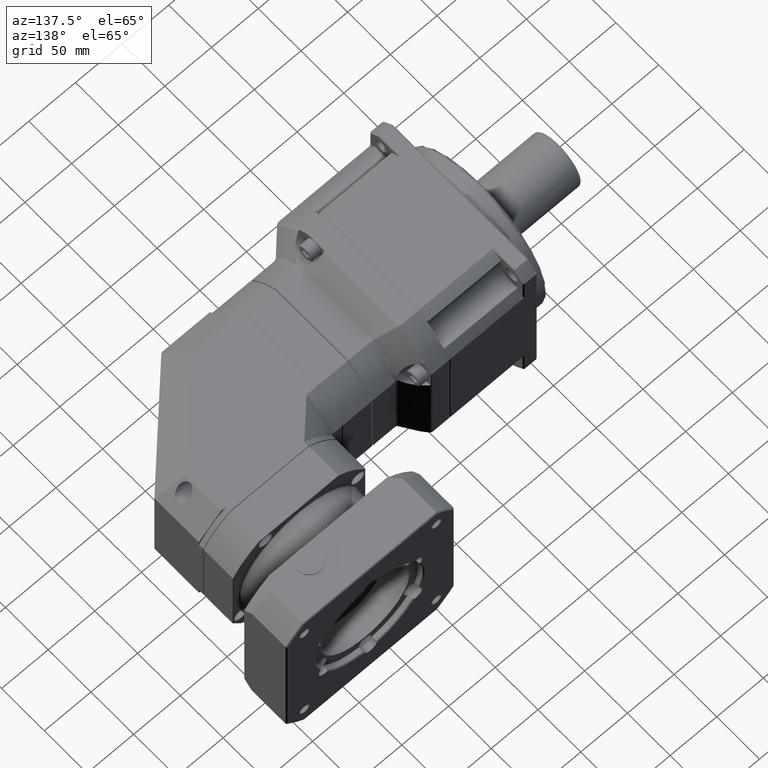
[diagram: clean part render]
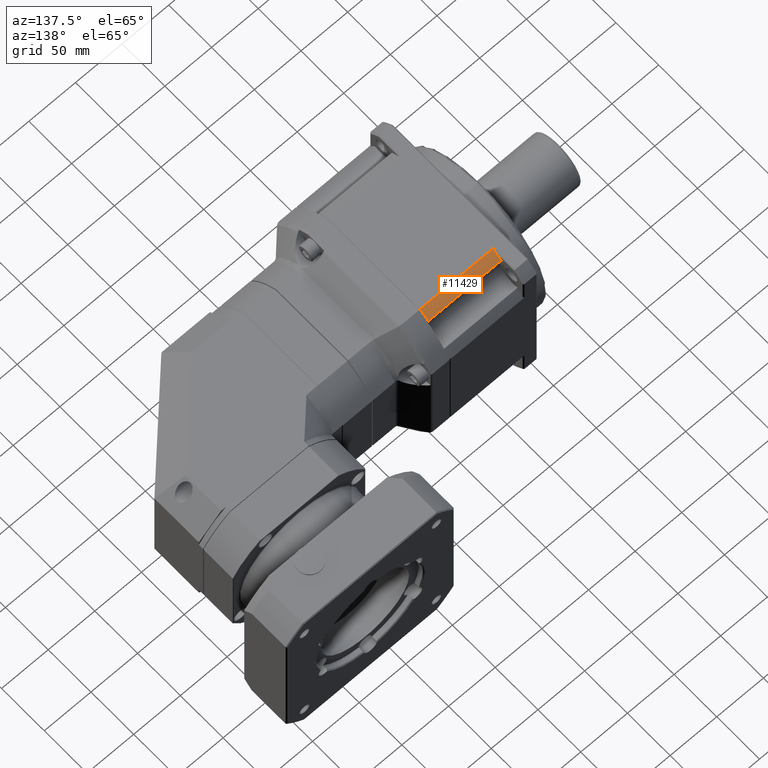
[diagram: same view with one face highlighted and labeled with its STEP entity id]
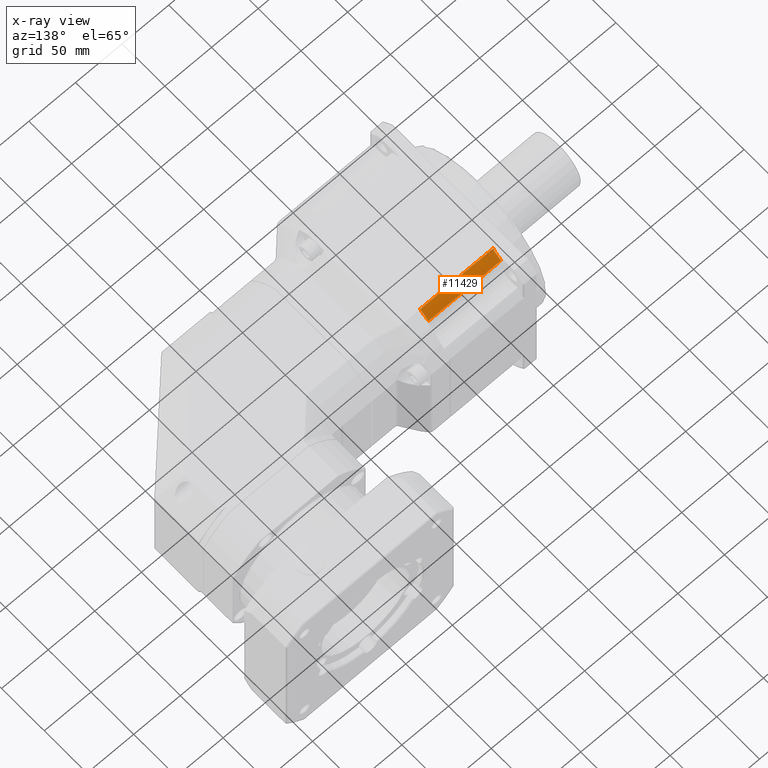
[diagram: x-ray of the same camera — body ghosted, the highlighted face saturated]
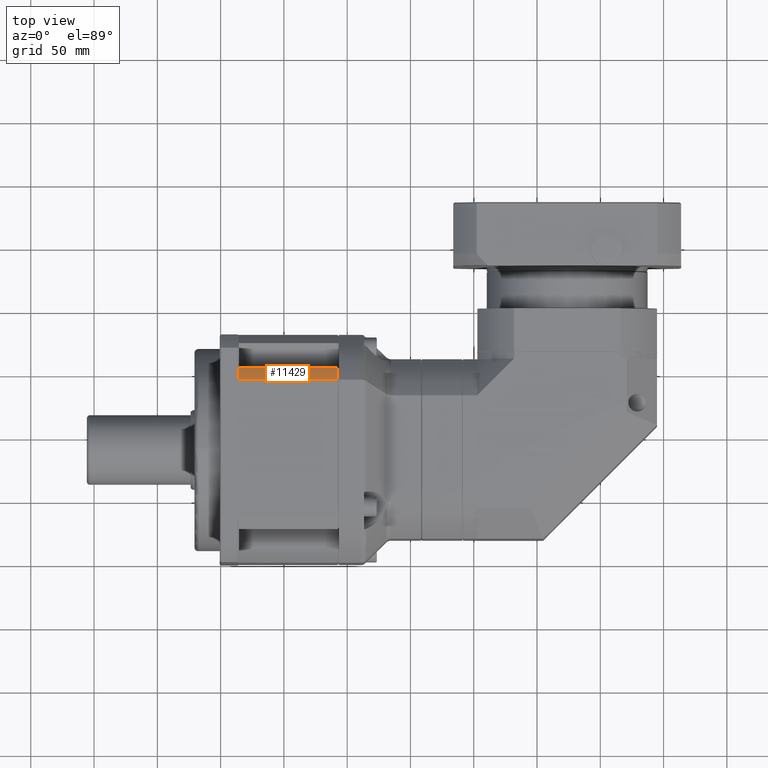
[diagram: same view with one face highlighted and labeled with its STEP entity id]
A machine part, auxiliary view. The second image highlights one B-rep face of the part: STEP entity #11429.
The next image is the same camera in x-ray: the body ghosted, the highlighted face saturated — about 0% of this face is hidden behind the body in this view.
A second angle (top view) of the same face is appended — the face is thin or edge-on in the first view.
In plain terms, the highlighted cylindrical surface (partial cylindrical patch) has radius 105 mm, axis along (-1, 0, -0).
Its self-contained STEP definition (entity closure, byte-faithful):
#23=ELLIPSE('',#12629,148.492424049175,105.);
#915=LINE('',#18872,#1465);
#925=LINE('',#18918,#1475);
#1465=VECTOR('',#15095,79.);
#1475=VECTOR('',#15145,78.);
#2846=FACE_OUTER_BOUND('',#3838,.T.);
#3838=EDGE_LOOP('',(#9004,#9005,#9006,#9007,#9008));
#4661=CIRCLE('',#12627,105.);
#4662=CIRCLE('',#12628,105.);
#5457=VERTEX_POINT('',#18868);
#5459=VERTEX_POINT('',#18871);
#5474=VERTEX_POINT('',#18915);
#5475=VERTEX_POINT('',#18917);
#5476=VERTEX_POINT('',#18919);
#6718=EDGE_CURVE('',#5457,#5459,#915,.T.);
#6741=EDGE_CURVE('',#5474,#5457,#4661,.T.);
#6742=EDGE_CURVE('',#5474,#5475,#925,.T.);
#6743=EDGE_CURVE('',#5475,#5476,#4662,.T.);
#6744=EDGE_CURVE('',#5459,#5476,#23,.F.);
#9004=ORIENTED_EDGE('',*,*,#6741,.F.);
#9005=ORIENTED_EDGE('',*,*,#6742,.T.);
#9006=ORIENTED_EDGE('',*,*,#6743,.T.);
#9007=ORIENTED_EDGE('',*,*,#6744,.F.);
#9008=ORIENTED_EDGE('',*,*,#6718,.F.);
#10397=CYLINDRICAL_SURFACE('',#12626,105.);
#11429=ADVANCED_FACE('',(#2846),#10397,.T.);
#12626=AXIS2_PLACEMENT_3D('',#18914,#15141,#15142);
#12627=AXIS2_PLACEMENT_3D('',#18916,#15143,#15144);
#12628=AXIS2_PLACEMENT_3D('',#18920,#15146,#15147);
#12629=AXIS2_PLACEMENT_3D('',#18921,#15148,#15149);
#15095=DIRECTION('',(-1.,6.24500451351639E-16,-1.13043727951383E-16));
#15141=DIRECTION('center_axis',(-1.,6.24500451351639E-16,-1.13043727951383E-16));
#15142=DIRECTION('ref_axis',(-1.13043727951383E-16,-1.41005115693427E-16,
1.));
#15143=DIRECTION('center_axis',(1.,-6.24500451351639E-16,1.13043727951383E-16));
#15144=DIRECTION('ref_axis',(-1.13043727951383E-16,-1.41005115693427E-16,
1.));
#15145=DIRECTION('',(-1.,6.24500451351639E-16,-1.13043727951383E-16));
#15146=DIRECTION('center_axis',(1.,-6.24500451351639E-16,1.13043727951383E-16));
#15147=DIRECTION('ref_axis',(-1.13043727951383E-16,-1.41005115693427E-16,
1.));
#15148=DIRECTION('center_axis',(0.707106781186547,-5.4129417749362E-16,
0.707106781186548));
#15149=DIRECTION('ref_axis',(-0.707106781186548,3.41882830515988E-16,0.707106781186547));
#18868=CARTESIAN_POINT('',(42.3446502759267,44.5181373971732,104.000186404244));
#18871=CARTESIAN_POINT('',(-36.6553497240733,44.5181373971733,104.000186404244));
#18872=CARTESIAN_POINT('',(43.3446502759267,44.5181373971732,104.000186404244));
#18914=CARTESIAN_POINT('Origin',(43.3446502759266,-9.56513173478662,14.0001864042435));
#18915=CARTESIAN_POINT('',(42.3446502759267,54.2893420389371,97.3524879866284));
#18916=CARTESIAN_POINT('Origin',(42.3446502759266,-9.56513173478662,14.0001864042435));
#18917=CARTESIAN_POINT('',(-35.6553497240733,54.2893420389372,97.3524879866283));
#18918=CARTESIAN_POINT('',(43.3446502759267,54.2893420389371,97.3524879866284));
#18919=CARTESIAN_POINT('',(-35.6553497240733,46.1484213739499,103.000186404244));
#18920=CARTESIAN_POINT('Origin',(-35.6553497240734,-9.56513173478657,14.0001864042435));
#18921=CARTESIAN_POINT('Origin',(53.3446502759266,-9.56513173478662,14.0001864042435));